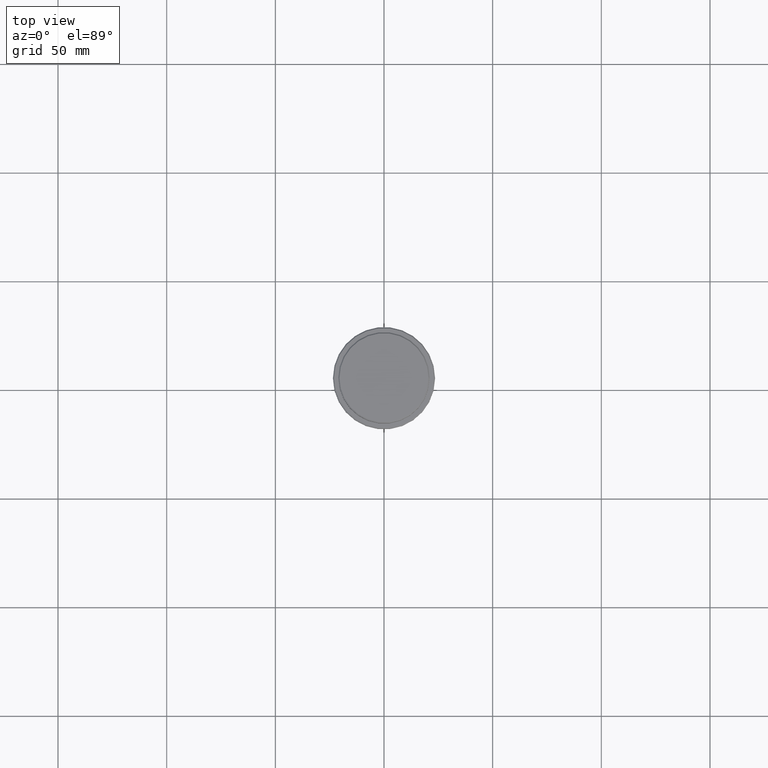
[diagram: clean part render]
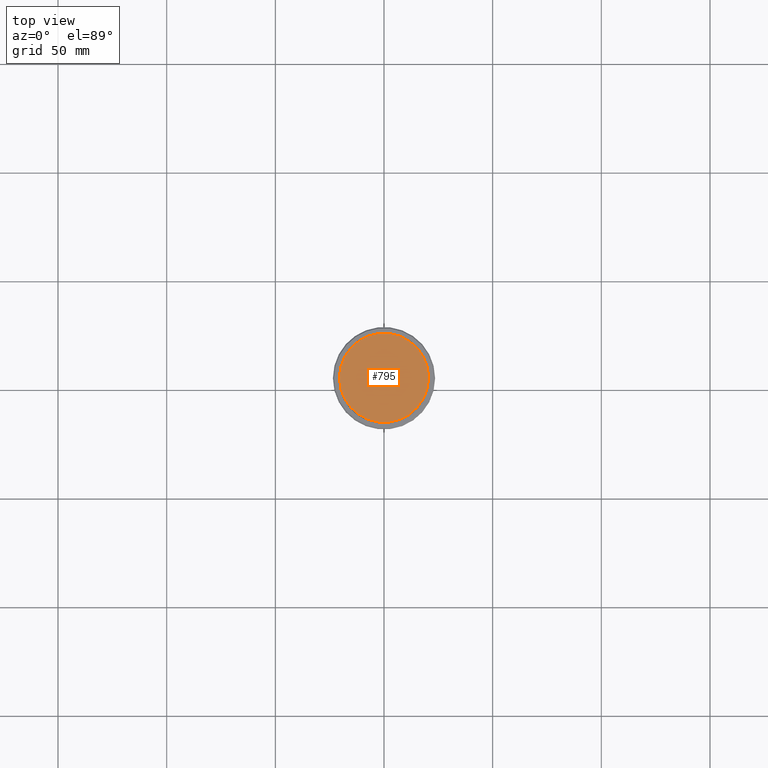
[diagram: same view with one face highlighted and labeled with its STEP entity id]
A machine part, top view. The second image highlights one B-rep face of the part: STEP entity #795.
In plain terms, the highlighted planar face has unit normal (0, -0, 1).
Its self-contained STEP definition (entity closure, byte-faithful):
#14 = CARTESIAN_POINT ( 'NONE',  ( 0.000000000000000000, 0.000000000000000000, 0.000000000000000000 ) ) ;
#99 = DIRECTION ( 'NONE',  ( 1.000000000000000000, 0.000000000000000000, 0.000000000000000000 ) ) ;
#192 = CIRCLE ( 'NONE', #658, 20.49999999999998934 ) ;
#286 = EDGE_LOOP ( 'NONE', ( #476, #507 ) ) ;
#347 = CARTESIAN_POINT ( 'NONE',  ( 20.49999999999998934, 2.541142108230757085E-15, 0.000000000000000000 ) ) ;
#369 = DIRECTION ( 'NONE',  ( -0.000000000000000000, -0.000000000000000000, 1.000000000000000000 ) ) ;
#418 = PLANE ( 'NONE',  #670 ) ;
#476 = ORIENTED_EDGE ( 'NONE', *, *, #480, .T. ) ;
#480 = EDGE_CURVE ( 'NONE', #1320, #908, #192, .T. ) ;
#507 = ORIENTED_EDGE ( 'NONE', *, *, #1040, .T. ) ;
#650 = DIRECTION ( 'NONE',  ( 0.000000000000000000, -0.000000000000000000, 1.000000000000000000 ) ) ;
#658 = AXIS2_PLACEMENT_3D ( 'NONE', #1245, #981, #1141 ) ;
#670 = AXIS2_PLACEMENT_3D ( 'NONE', #14, #650, #99 ) ;
#711 = CARTESIAN_POINT ( 'NONE',  ( 0.000000000000000000, 0.000000000000000000, 0.000000000000000000 ) ) ;
#795 = ADVANCED_FACE ( 'NONE', ( #978 ), #418, .T. ) ;
#801 = DIRECTION ( 'NONE',  ( 1.000000000000000000, 0.000000000000000000, 0.000000000000000000 ) ) ;
#908 = VERTEX_POINT ( 'NONE', #347 ) ;
#940 = AXIS2_PLACEMENT_3D ( 'NONE', #711, #369, #801 ) ;
#978 = FACE_OUTER_BOUND ( 'NONE', #286, .T. ) ;
#981 = DIRECTION ( 'NONE',  ( -0.000000000000000000, -0.000000000000000000, 1.000000000000000000 ) ) ;
#1040 = EDGE_CURVE ( 'NONE', #908, #1320, #1351, .T. ) ;
#1141 = DIRECTION ( 'NONE',  ( 1.000000000000000000, 0.000000000000000000, 0.000000000000000000 ) ) ;
#1231 = CARTESIAN_POINT ( 'NONE',  ( -20.49999999999998934, 0.000000000000000000, 0.000000000000000000 ) ) ;
#1245 = CARTESIAN_POINT ( 'NONE',  ( 0.000000000000000000, 0.000000000000000000, 0.000000000000000000 ) ) ;
#1320 = VERTEX_POINT ( 'NONE', #1231 ) ;
#1351 = CIRCLE ( 'NONE', #940, 20.49999999999998934 ) ;